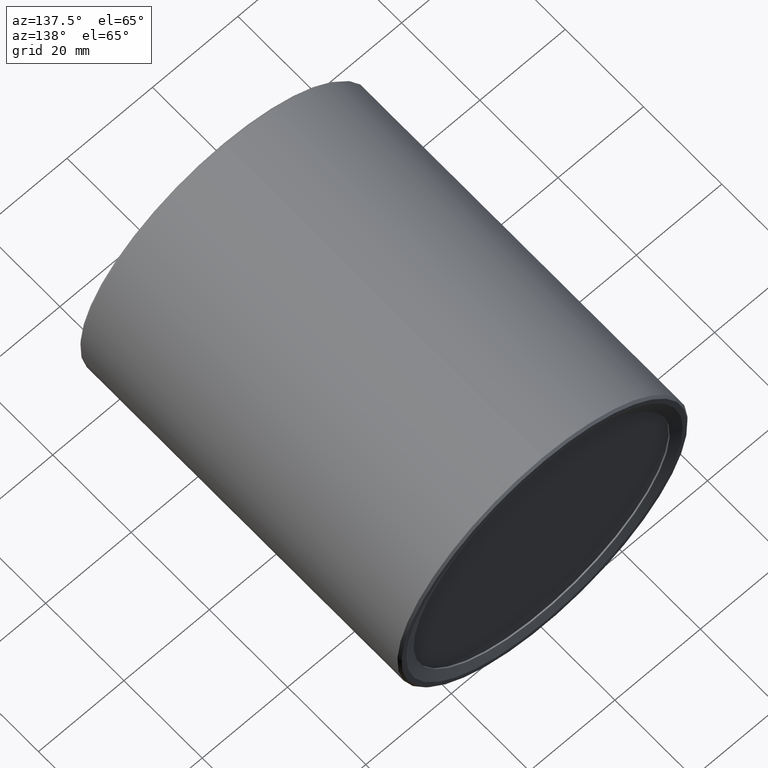
[diagram: clean part render]
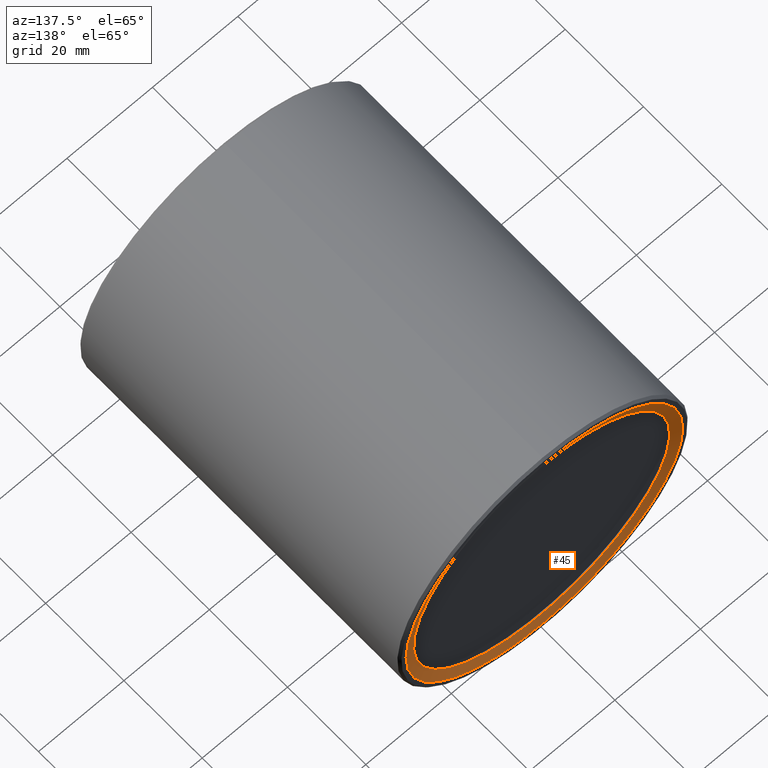
[diagram: same view with one face highlighted and labeled with its STEP entity id]
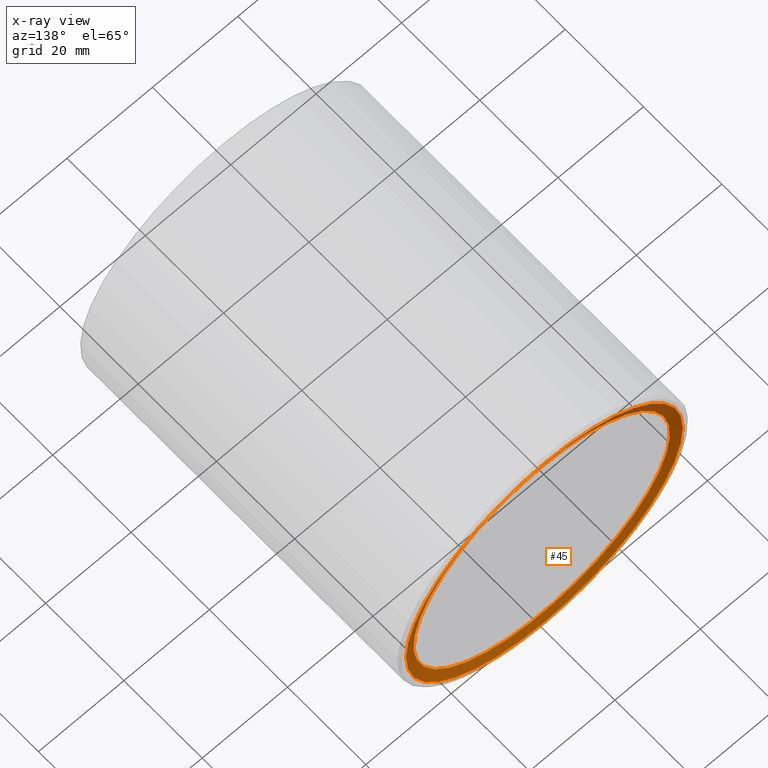
[diagram: x-ray of the same camera — body ghosted, the highlighted face saturated]
A machine part, auxiliary view. The second image highlights one B-rep face of the part: STEP entity #45.
The next image is the same camera in x-ray: the body ghosted, the highlighted face saturated — about 0% of this face is hidden behind the body in this view.
In plain terms, the highlighted conical surface has half-angle 73.718 deg.
Its self-contained STEP definition (entity closure, byte-faithful):
#26 = AXIS2_PLACEMENT_3D ( 'NONE', #33, #65, #93 ) ;
#33 = CARTESIAN_POINT ( 'NONE',  ( 0.000000000000000000, 81.29881402696902626, 0.000000000000000000 ) ) ;
#38 = FACE_OUTER_BOUND ( 'NONE', #139, .T. ) ;
#39 = EDGE_CURVE ( 'NONE', #78, #78, #186, .T. ) ;
#45 = ADVANCED_FACE ( 'NONE', ( #38, #148 ), #53, .F. ) ;
#53 = CONICAL_SURFACE ( 'NONE', #330, 29.86885863975199129, 1.286627573503845712 ) ;
#61 = DIRECTION ( 'NONE',  ( -0.000000000000000000, 1.000000000000000000, -0.000000000000000000 ) ) ;
#65 = DIRECTION ( 'NONE',  ( 0.000000000000000000, -1.000000000000000000, 0.000000000000000000 ) ) ;
#78 = VERTEX_POINT ( 'NONE', #188 ) ;
#93 = DIRECTION ( 'NONE',  ( 0.000000000000000000, 0.000000000000000000, 1.000000000000000000 ) ) ;
#117 = EDGE_LOOP ( 'NONE', ( #264 ) ) ;
#120 = CARTESIAN_POINT ( 'NONE',  ( 0.000000000000000000, 81.26051114682492482, 0.000000000000000000 ) ) ;
#139 = EDGE_LOOP ( 'NONE', ( #342 ) ) ;
#148 = FACE_BOUND ( 'NONE', #117, .T. ) ;
#162 = CARTESIAN_POINT ( 'NONE',  ( 0.000000000000000000, 82.00000000000000000, 0.000000000000000000 ) ) ;
#186 = CIRCLE ( 'NONE', #26, 30.00000000000000000 ) ;
#188 = CARTESIAN_POINT ( 'NONE',  ( 0.000000000000000000, 81.29881402696902626, 30.00000000000000000 ) ) ;
#189 = VERTEX_POINT ( 'NONE', #304 ) ;
#194 = DIRECTION ( 'NONE',  ( -0.000000000000000000, 1.000000000000000000, -0.000000000000000000 ) ) ;
#248 = CIRCLE ( 'NONE', #277, 32.40071978775878137 ) ;
#251 = DIRECTION ( 'NONE',  ( 0.000000000000000000, 0.000000000000000000, 1.000000000000000000 ) ) ;
#264 = ORIENTED_EDGE ( 'NONE', *, *, #39, .T. ) ;
#277 = AXIS2_PLACEMENT_3D ( 'NONE', #162, #194, #251 ) ;
#304 = CARTESIAN_POINT ( 'NONE',  ( 0.000000000000000000, 82.00000000000000000, 32.40071978775878137 ) ) ;
#317 = EDGE_CURVE ( 'NONE', #189, #189, #248, .T. ) ;
#330 = AXIS2_PLACEMENT_3D ( 'NONE', #120, #61, #336 ) ;
#336 = DIRECTION ( 'NONE',  ( 0.000000000000000000, 0.000000000000000000, 1.000000000000000000 ) ) ;
#342 = ORIENTED_EDGE ( 'NONE', *, *, #317, .T. ) ;